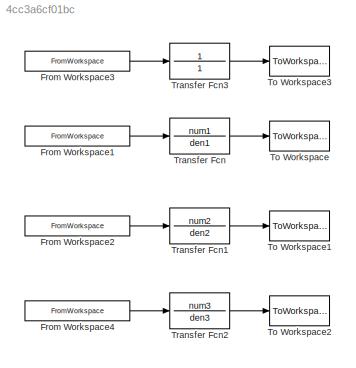
MODEL slx_4cc3a6cf01bc
KIND model
BLOCK [FromWorkspace] From Workspace1
  SampleTime = 0
  VariableName = m.TiempoMusica
  ZeroCross = on
BLOCK [FromWorkspace] From Workspace2
  SampleTime = 0
  VariableName = m.TiempoMusica
  ZeroCross = on
BLOCK [FromWorkspace] From Workspace3
  SampleTime = 0
  VariableName = m.TiempoMusica
  ZeroCross = on
BLOCK [FromWorkspace] From Workspace4
  SampleTime = 0
  VariableName = m.TiempoMusica
  ZeroCross = on
BLOCK [ToWorkspace] To Workspace
  FixptAsFi = on
  MaxDataPoints = inf
  Ports = [1]
  SampleTime = 1/11025
  Save2DSignal = 3-D array (concatenate along third dimension)
  SaveFormat = Timeseries
  VariableName = sound1
BLOCK [ToWorkspace] To Workspace1
  FixptAsFi = on
  MaxDataPoints = inf
  Ports = [1]
  SampleTime = 1/11025
  Save2DSignal = 3-D array (concatenate along third dimension)
  SaveFormat = Timeseries
  VariableName = sound2
BLOCK [ToWorkspace] To Workspace2
  FixptAsFi = on
  MaxDataPoints = inf
  Ports = [1]
  SampleTime = 1/11025
  Save2DSignal = 3-D array (concatenate along third dimension)
  SaveFormat = Timeseries
  VariableName = sound3
BLOCK [ToWorkspace] To Workspace3
  FixptAsFi = on
  MaxDataPoints = inf
  Ports = [1]
  SampleTime = 1/11025
  Save2DSignal = 3-D array (concatenate along third dimension)
  SaveFormat = Timeseries
  VariableName = sound0
BLOCK [TransferFcn] Transfer Fcn
  Denominator = den1
  Numerator = num1
BLOCK [TransferFcn] Transfer Fcn1
  Denominator = den2
  Numerator = num2
BLOCK [TransferFcn] Transfer Fcn2
  Denominator = den3
  Numerator = num3
BLOCK [TransferFcn] Transfer Fcn3
  Denominator = 1
  Numerator = 1
LINE From Workspace1:1 -> Transfer Fcn:1
LINE From Workspace2:1 -> Transfer Fcn1:1
LINE From Workspace3:1 -> Transfer Fcn3:1
LINE From Workspace4:1 -> Transfer Fcn2:1
LINE Transfer Fcn1:1 -> To Workspace1:1
LINE Transfer Fcn2:1 -> To Workspace2:1
LINE Transfer Fcn3:1 -> To Workspace3:1
LINE Transfer Fcn:1 -> To Workspace:1
